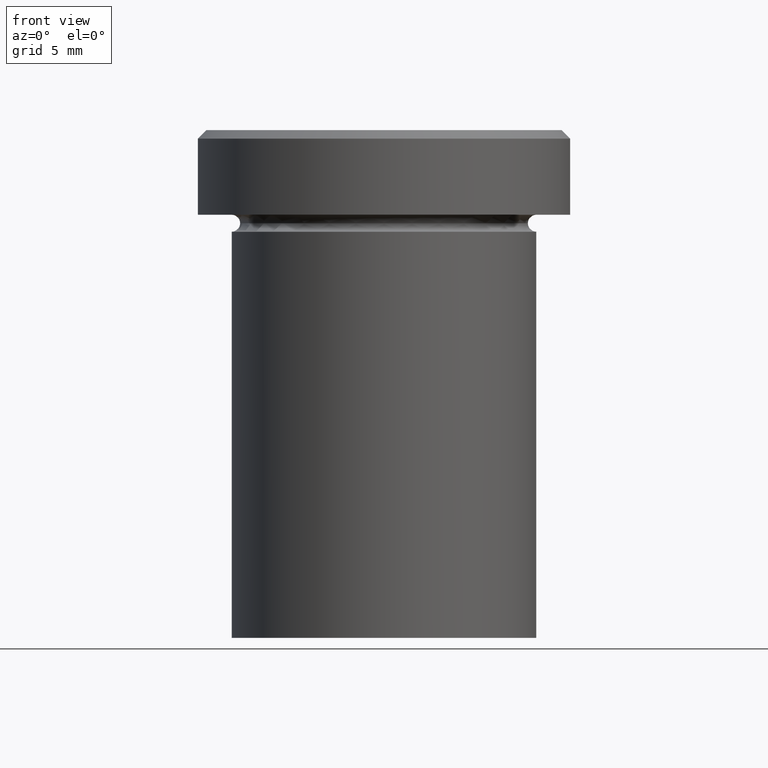
[diagram: clean part render]
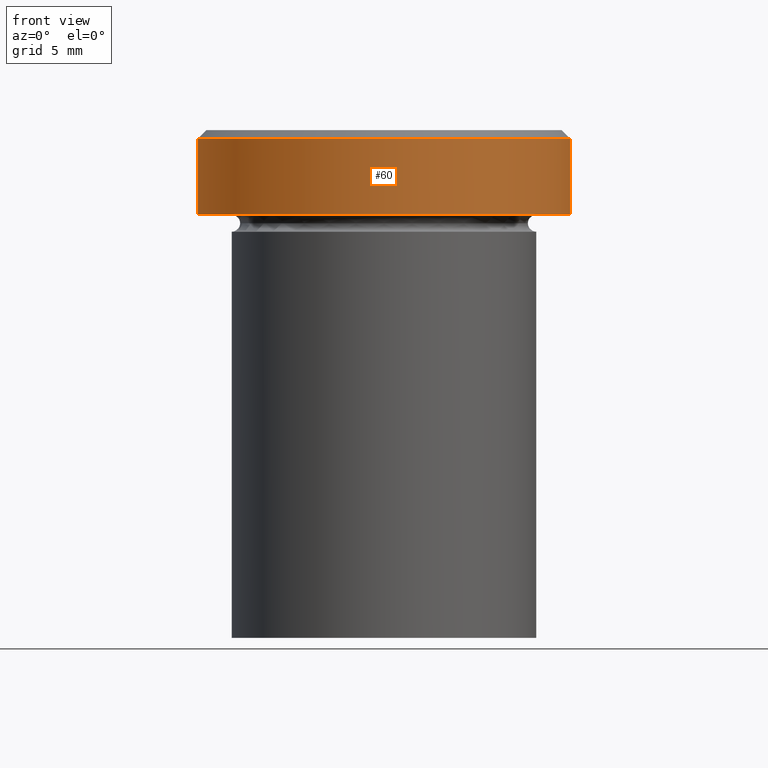
[diagram: same view with one face highlighted and labeled with its STEP entity id]
A machine part, front view. The second image highlights one B-rep face of the part: STEP entity #60.
In plain terms, the highlighted cylindrical surface (partial cylindrical patch) has radius 11 mm, axis along (-0, -0, 1).
Its self-contained STEP definition (entity closure, byte-faithful):
#3 = EDGE_CURVE ( 'NONE', #217, #158, #297, .T. ) ;
#22 = CARTESIAN_POINT ( 'NONE',  ( -11.00000000000000000, 1.347111479062088405E-15, -5.000000000000000000 ) ) ;
#26 = FACE_OUTER_BOUND ( 'NONE', #29, .T. ) ;
#29 = EDGE_LOOP ( 'NONE', ( #351, #173, #393, #36 ) ) ;
#36 = ORIENTED_EDGE ( 'NONE', *, *, #119, .T. ) ;
#44 = DIRECTION ( 'NONE',  ( 0.000000000000000000, 0.000000000000000000, -1.000000000000000000 ) ) ;
#47 = CARTESIAN_POINT ( 'NONE',  ( 11.00000000000000000, 0.000000000000000000, 0.000000000000000000 ) ) ;
#60 = ADVANCED_FACE ( 'NONE', ( #26 ), #301, .T. ) ;
#70 = CARTESIAN_POINT ( 'NONE',  ( -11.00000000000000000, 1.347111479062088405E-15, -0.5000000000000004441 ) ) ;
#74 = CARTESIAN_POINT ( 'NONE',  ( 11.00000000000000000, 0.000000000000000000, -0.5000000000000004441 ) ) ;
#101 = CIRCLE ( 'NONE', #138, 11.00000000000000000 ) ;
#108 = VERTEX_POINT ( 'NONE', #74 ) ;
#117 = CARTESIAN_POINT ( 'NONE',  ( 0.000000000000000000, 0.000000000000000000, 0.000000000000000000 ) ) ;
#119 = EDGE_CURVE ( 'NONE', #108, #158, #170, .T. ) ;
#120 = VECTOR ( 'NONE', #231, 1000.000000000000000 ) ;
#136 = EDGE_CURVE ( 'NONE', #217, #214, #101, .T. ) ;
#138 = AXIS2_PLACEMENT_3D ( 'NONE', #387, #174, #150 ) ;
#150 = DIRECTION ( 'NONE',  ( 1.000000000000000000, 0.000000000000000000, 0.000000000000000000 ) ) ;
#158 = VERTEX_POINT ( 'NONE', #70 ) ;
#167 = CARTESIAN_POINT ( 'NONE',  ( 0.000000000000000000, 0.000000000000000000, -0.5000000000000004441 ) ) ;
#170 = CIRCLE ( 'NONE', #388, 11.00000000000000000 ) ;
#173 = ORIENTED_EDGE ( 'NONE', *, *, #136, .T. ) ;
#174 = DIRECTION ( 'NONE',  ( -0.000000000000000000, -0.000000000000000000, 1.000000000000000000 ) ) ;
#214 = VERTEX_POINT ( 'NONE', #357 ) ;
#217 = VERTEX_POINT ( 'NONE', #22 ) ;
#231 = DIRECTION ( 'NONE',  ( -0.000000000000000000, -0.000000000000000000, 1.000000000000000000 ) ) ;
#232 = DIRECTION ( 'NONE',  ( -0.000000000000000000, -0.000000000000000000, 1.000000000000000000 ) ) ;
#235 = DIRECTION ( 'NONE',  ( -0.000000000000000000, -0.000000000000000000, 1.000000000000000000 ) ) ;
#254 = DIRECTION ( 'NONE',  ( 1.000000000000000000, 0.000000000000000000, 0.000000000000000000 ) ) ;
#297 = LINE ( 'NONE', #362, #375 ) ;
#301 = CYLINDRICAL_SURFACE ( 'NONE', #332, 11.00000000000000000 ) ;
#304 = DIRECTION ( 'NONE',  ( 1.000000000000000000, 0.000000000000000000, 0.000000000000000000 ) ) ;
#332 = AXIS2_PLACEMENT_3D ( 'NONE', #117, #235, #304 ) ;
#351 = ORIENTED_EDGE ( 'NONE', *, *, #3, .F. ) ;
#357 = CARTESIAN_POINT ( 'NONE',  ( 11.00000000000000000, 0.000000000000000000, -5.000000000000000000 ) ) ;
#362 = CARTESIAN_POINT ( 'NONE',  ( -11.00000000000000000, 1.347111479062088405E-15, 0.000000000000000000 ) ) ;
#370 = EDGE_CURVE ( 'NONE', #214, #108, #389, .T. ) ;
#375 = VECTOR ( 'NONE', #232, 1000.000000000000000 ) ;
#387 = CARTESIAN_POINT ( 'NONE',  ( 0.000000000000000000, 0.000000000000000000, -5.000000000000000000 ) ) ;
#388 = AXIS2_PLACEMENT_3D ( 'NONE', #167, #44, #254 ) ;
#389 = LINE ( 'NONE', #47, #120 ) ;
#393 = ORIENTED_EDGE ( 'NONE', *, *, #370, .T. ) ;